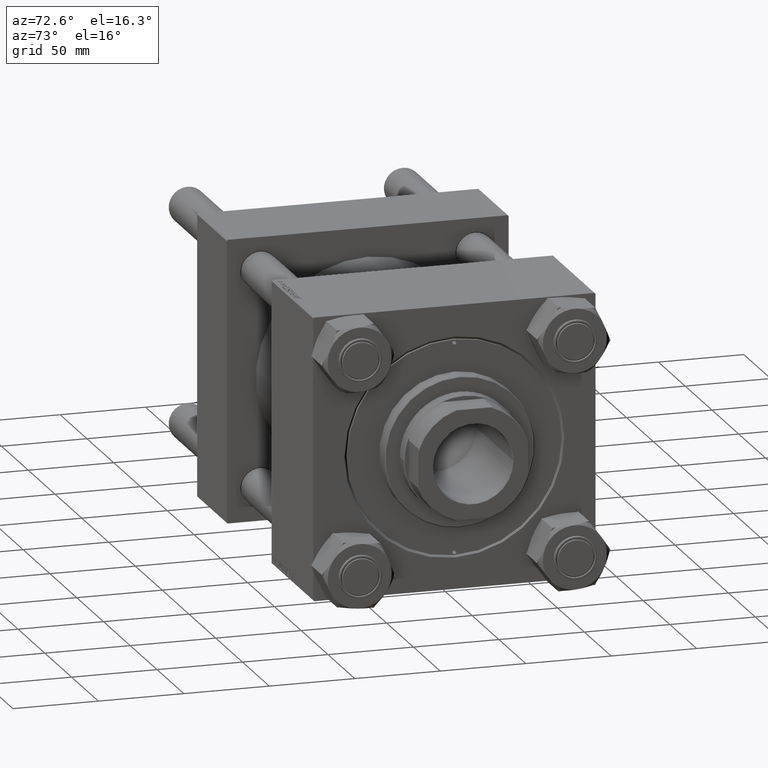
[diagram: clean part render]
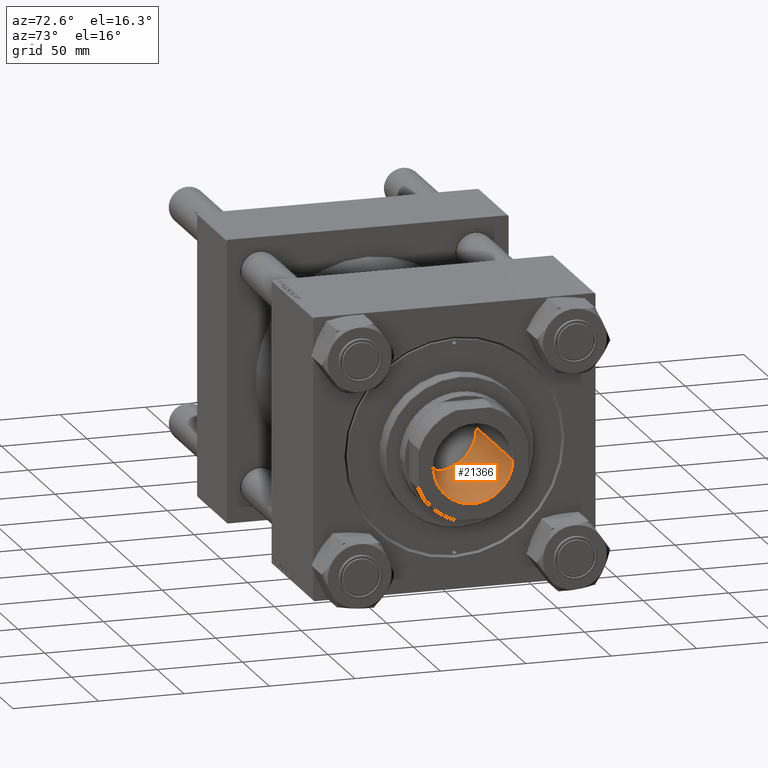
[diagram: same view with one face highlighted and labeled with its STEP entity id]
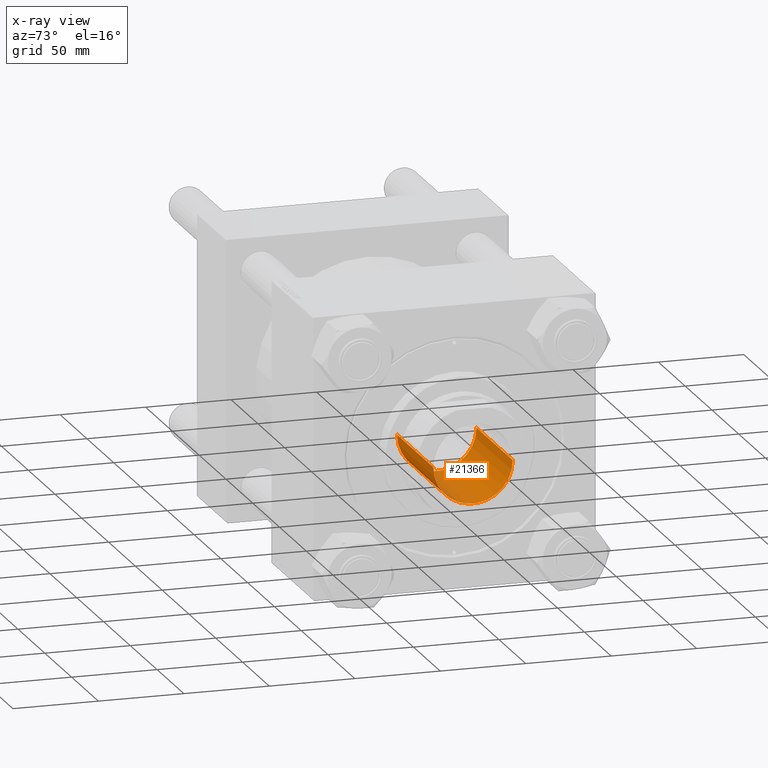
[diagram: x-ray of the same camera — body ghosted, the highlighted face saturated]
A machine part, auxiliary view. The second image highlights one B-rep face of the part: STEP entity #21366.
The next image is the same camera in x-ray: the body ghosted, the highlighted face saturated — about 0% of this face is hidden behind the body in this view.
In plain terms, the highlighted cylindrical surface (partial cylindrical patch) has radius 23.25 mm, axis along (1, 0, -0).
Its self-contained STEP definition (entity closure, byte-faithful):
#725 = EDGE_CURVE ( 'NONE', #6230, #17334, #26040, .T. ) ;
#1402 = DIRECTION ( 'NONE',  ( -0.000000000000000000, -0.000000000000000000, 1.000000000000000000 ) ) ;
#6230 = VERTEX_POINT ( 'NONE', #20878 ) ;
#9306 = VECTOR ( 'NONE', #15372, 1000.000000000000000 ) ;
#10323 = VERTEX_POINT ( 'NONE', #49681 ) ;
#11111 = CARTESIAN_POINT ( 'NONE',  ( -23.24999999999999289, 2.847303808017595350E-15, 196.6999999999999602 ) ) ;
#11365 = AXIS2_PLACEMENT_3D ( 'NONE', #35455, #30863, #19149 ) ;
#11655 = CIRCLE ( 'NONE', #32847, 23.24999999999998579 ) ;
#13324 = EDGE_CURVE ( 'NONE', #28142, #17334, #23031, .T. ) ;
#15074 = DIRECTION ( 'NONE',  ( -0.000000000000000000, -0.000000000000000000, 1.000000000000000000 ) ) ;
#15372 = DIRECTION ( 'NONE',  ( -0.000000000000000000, -0.000000000000000000, 1.000000000000000000 ) ) ;
#16675 = EDGE_CURVE ( 'NONE', #10323, #28142, #11655, .T. ) ;
#16709 = ORIENTED_EDGE ( 'NONE', *, *, #30686, .T. ) ;
#16740 = AXIS2_PLACEMENT_3D ( 'NONE', #30851, #15074, #37783 ) ;
#17334 = VERTEX_POINT ( 'NONE', #11111 ) ;
#18520 = VECTOR ( 'NONE', #1402, 1000.000000000000000 ) ;
#18889 = FACE_OUTER_BOUND ( 'NONE', #38577, .T. ) ;
#19149 = DIRECTION ( 'NONE',  ( 1.000000000000000000, 0.000000000000000000, 0.000000000000000000 ) ) ;
#20878 = CARTESIAN_POINT ( 'NONE',  ( 23.24999999999999289, 0.000000000000000000, 196.6999999999999602 ) ) ;
#21366 = ADVANCED_FACE ( 'NONE', ( #18889 ), #38273, .F. ) ;
#23031 = LINE ( 'NONE', #49809, #9306 ) ;
#23087 = DIRECTION ( 'NONE',  ( 1.000000000000000000, 0.000000000000000000, 0.000000000000000000 ) ) ;
#23328 = CARTESIAN_POINT ( 'NONE',  ( 0.000000000000000000, 0.000000000000000000, 128.9999999999999716 ) ) ;
#23906 = LINE ( 'NONE', #28216, #18520 ) ;
#26040 = CIRCLE ( 'NONE', #11365, 23.24999999999999289 ) ;
#28142 = VERTEX_POINT ( 'NONE', #28339 ) ;
#28216 = CARTESIAN_POINT ( 'NONE',  ( 23.24999999999999289, 0.000000000000000000, 196.9999999999999716 ) ) ;
#28339 = CARTESIAN_POINT ( 'NONE',  ( -23.24999999999998579, 2.847303808017594561E-15, 128.9999999999999716 ) ) ;
#29191 = ORIENTED_EDGE ( 'NONE', *, *, #13324, .F. ) ;
#30686 = EDGE_CURVE ( 'NONE', #10323, #6230, #23906, .T. ) ;
#30851 = CARTESIAN_POINT ( 'NONE',  ( 0.000000000000000000, 0.000000000000000000, 196.9999999999999716 ) ) ;
#30863 = DIRECTION ( 'NONE',  ( 0.000000000000000000, 0.000000000000000000, 1.000000000000000000 ) ) ;
#31736 = DIRECTION ( 'NONE',  ( -0.000000000000000000, -0.000000000000000000, 1.000000000000000000 ) ) ;
#32847 = AXIS2_PLACEMENT_3D ( 'NONE', #23328, #31736, #23087 ) ;
#35455 = CARTESIAN_POINT ( 'NONE',  ( 0.000000000000000000, 0.000000000000000000, 196.6999999999999602 ) ) ;
#37783 = DIRECTION ( 'NONE',  ( 1.000000000000000000, 0.000000000000000000, 0.000000000000000000 ) ) ;
#38273 = CYLINDRICAL_SURFACE ( 'NONE', #16740, 23.24999999999999289 ) ;
#38577 = EDGE_LOOP ( 'NONE', ( #29191, #48097, #16709, #38920 ) ) ;
#38920 = ORIENTED_EDGE ( 'NONE', *, *, #725, .T. ) ;
#48097 = ORIENTED_EDGE ( 'NONE', *, *, #16675, .F. ) ;
#49681 = CARTESIAN_POINT ( 'NONE',  ( 23.24999999999998579, 0.000000000000000000, 128.9999999999999716 ) ) ;
#49809 = CARTESIAN_POINT ( 'NONE',  ( -23.24999999999999289, 2.847303808017595350E-15, 196.9999999999999716 ) ) ;